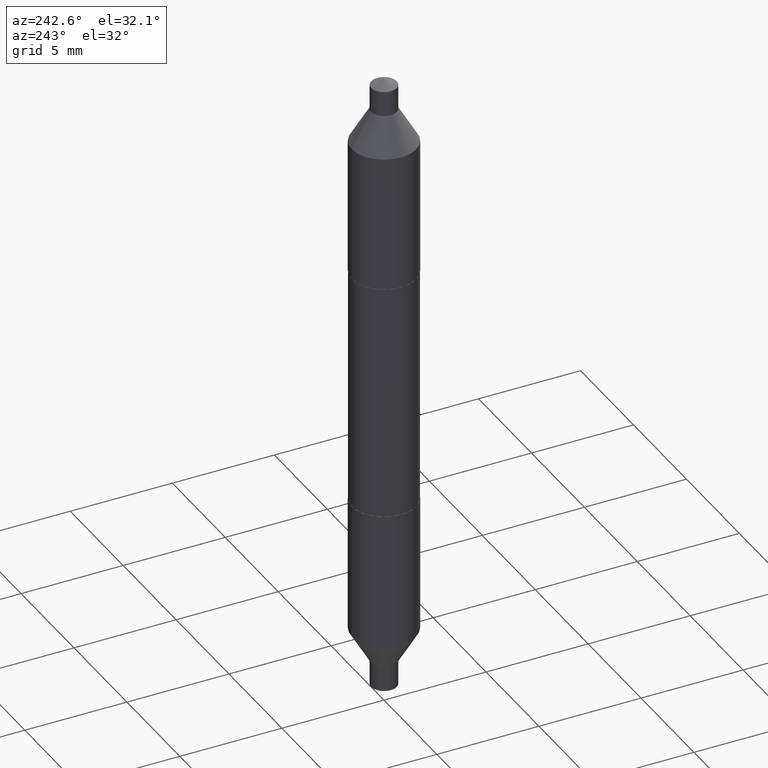
[diagram: clean part render]
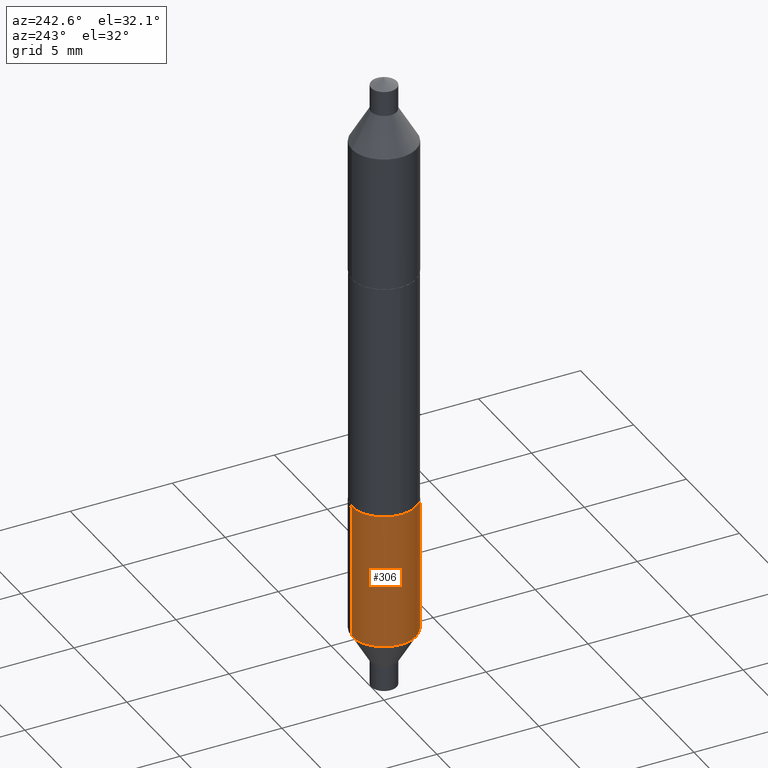
[diagram: same view with one face highlighted and labeled with its STEP entity id]
A machine part, auxiliary view. The second image highlights one B-rep face of the part: STEP entity #306.
In plain terms, the highlighted cylindrical surface (edge-blend (fillet) strip) has radius 1.5748 mm, axis along (-0, 0, 1).
Its self-contained STEP definition (entity closure, byte-faithful):
#25 = CIRCLE ( 'NONE', #423, 0.06200000000000000649 ) ;
#87 = CARTESIAN_POINT ( 'NONE',  ( -4.329436860165427951E-16, -0.06200000000000079753, -0.2299999999999997324 ) ) ;
#122 = CARTESIAN_POINT ( 'NONE',  ( -4.329436860165363856E-16, -0.06200000000000171346, -0.4922212997969227510 ) ) ;
#153 = CYLINDRICAL_SURFACE ( 'NONE', #610, 0.06199999999999999956 ) ;
#215 = CARTESIAN_POINT ( 'NONE',  ( 4.405364961712710854E-16, 0.06199999999999830647, -0.4922212997969231396 ) ) ;
#220 = VECTOR ( 'NONE', #385, 39.37007874015748143 ) ;
#243 = EDGE_CURVE ( 'NONE', #669, #324, #582, .T. ) ;
#250 = DIRECTION ( 'NONE',  ( -2.473974349157782882E-29, 3.450659778871567200E-15, 1.000000000000000000 ) ) ;
#256 = LINE ( 'NONE', #576, #533 ) ;
#257 = EDGE_CURVE ( 'NONE', #437, #669, #256, .T. ) ;
#283 = CARTESIAN_POINT ( 'NONE',  ( -4.329436860165427951E-16, -0.06200000000000079753, -0.2299999999999997324 ) ) ;
#304 = DIRECTION ( 'NONE',  ( -6.982962677686265922E-15, -1.000000000000000000, 3.304654831045479413E-15 ) ) ;
#306 = ADVANCED_FACE ( 'NONE', ( #681 ), #153, .T. ) ;
#324 = VERTEX_POINT ( 'NONE', #87 ) ;
#343 = EDGE_CURVE ( 'NONE', #437, #654, #25, .T. ) ;
#357 = CARTESIAN_POINT ( 'NONE',  ( 5.624578254225812687E-30, -8.030407079339232947E-16, -0.2299999999999999267 ) ) ;
#359 = ORIENTED_EDGE ( 'NONE', *, *, #520, .T. ) ;
#367 = AXIS2_PLACEMENT_3D ( 'NONE', #525, #685, #471 ) ;
#384 = EDGE_LOOP ( 'NONE', ( #543, #484, #359, #699 ) ) ;
#385 = DIRECTION ( 'NONE',  ( -2.473974349157782882E-29, 3.450659778871567200E-15, 1.000000000000000000 ) ) ;
#401 = CARTESIAN_POINT ( 'NONE',  ( 4.405364961712741915E-16, 0.06199999999999919464, -0.2300000000000001488 ) ) ;
#423 = AXIS2_PLACEMENT_3D ( 'NONE', #528, #626, #304 ) ;
#437 = VERTEX_POINT ( 'NONE', #215 ) ;
#471 = DIRECTION ( 'NONE',  ( -6.982962677686265922E-15, -1.000000000000000000, 3.304654831045479808E-15 ) ) ;
#484 = ORIENTED_EDGE ( 'NONE', *, *, #343, .T. ) ;
#519 = DIRECTION ( 'NONE',  ( -6.982962677686265922E-15, -1.000000000000000000, 3.304654831045479808E-15 ) ) ;
#520 = EDGE_CURVE ( 'NONE', #654, #324, #637, .T. ) ;
#525 = CARTESIAN_POINT ( 'NONE',  ( 5.624578254225812687E-30, -8.030407079339232947E-16, -0.2299999999999999267 ) ) ;
#528 = CARTESIAN_POINT ( 'NONE',  ( 1.211186594922981775E-29, -1.707877200306588786E-15, -0.4922212997969229731 ) ) ;
#533 = VECTOR ( 'NONE', #250, 39.37007874015748143 ) ;
#543 = ORIENTED_EDGE ( 'NONE', *, *, #257, .F. ) ;
#576 = CARTESIAN_POINT ( 'NONE',  ( 4.405364961712676834E-16, 0.06199999999999919464, -0.2300000000000001488 ) ) ;
#582 = CIRCLE ( 'NONE', #367, 0.06199999999999999956 ) ;
#610 = AXIS2_PLACEMENT_3D ( 'NONE', #357, #629, #519 ) ;
#626 = DIRECTION ( 'NONE',  ( -2.473974349157782882E-29, 3.450659778871567200E-15, 1.000000000000000000 ) ) ;
#629 = DIRECTION ( 'NONE',  ( -2.473974349157782882E-29, 3.450659778871567200E-15, 1.000000000000000000 ) ) ;
#637 = LINE ( 'NONE', #283, #220 ) ;
#654 = VERTEX_POINT ( 'NONE', #122 ) ;
#669 = VERTEX_POINT ( 'NONE', #401 ) ;
#681 = FACE_OUTER_BOUND ( 'NONE', #384, .T. ) ;
#685 = DIRECTION ( 'NONE',  ( -2.473974349157782882E-29, 3.450659778871567200E-15, 1.000000000000000000 ) ) ;
#699 = ORIENTED_EDGE ( 'NONE', *, *, #243, .F. ) ;